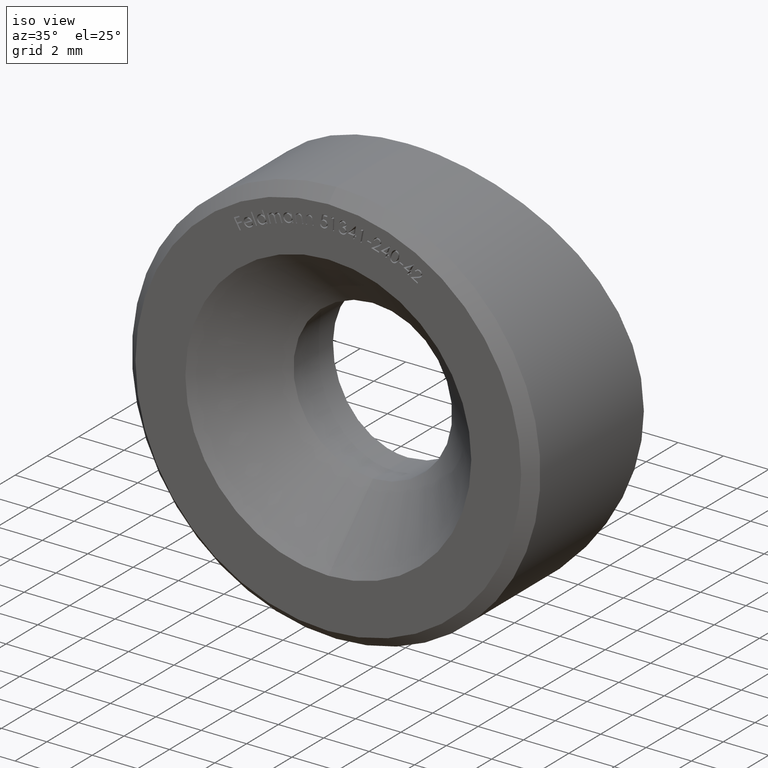
[diagram: clean part render]
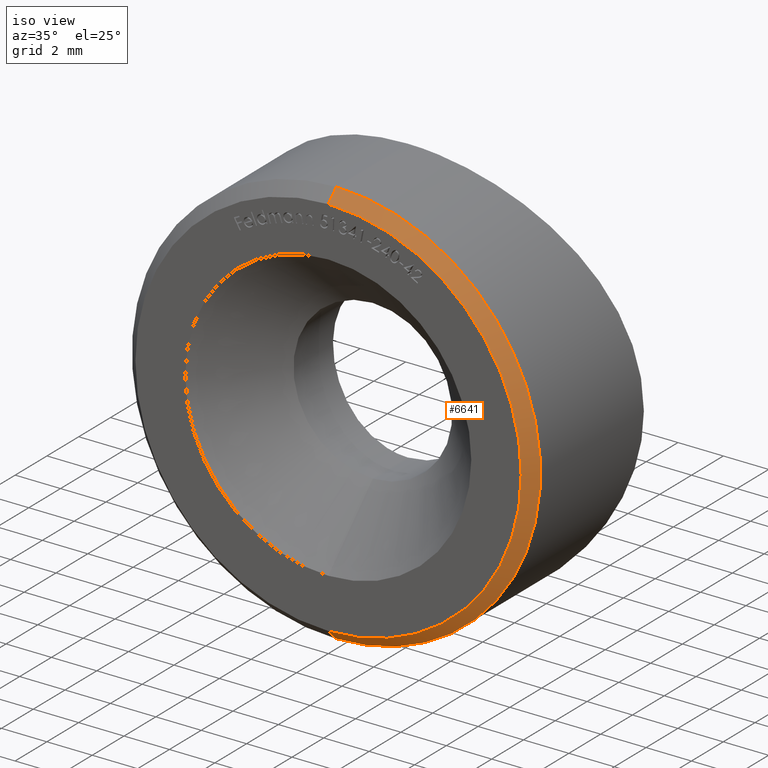
[diagram: same view with one face highlighted and labeled with its STEP entity id]
A machine part, iso view. The second image highlights one B-rep face of the part: STEP entity #6641.
In plain terms, the highlighted conical surface has half-angle 45 deg.
Its self-contained STEP definition (entity closure, byte-faithful):
#602 = VECTOR ( 'NONE', #6966, 1000.000000000000114 ) ;
#625 = EDGE_LOOP ( 'NONE', ( #7452, #5682, #12645, #7019 ) ) ;
#1182 = EDGE_CURVE ( 'NONE', #8345, #6302, #11291, .T. ) ;
#1341 = VERTEX_POINT ( 'NONE', #6113 ) ;
#1631 = DIRECTION ( 'NONE',  ( 0.000000000000000000, 0.7071067811865474617, 0.7071067811865474617 ) ) ;
#1910 = CARTESIAN_POINT ( 'NONE',  ( 1.102182119232617714E-15, 0.5000000000000056621, 9.000000000000000000 ) ) ;
#2977 = AXIS2_PLACEMENT_3D ( 'NONE', #4828, #9873, #3637 ) ;
#3034 = CIRCLE ( 'NONE', #6975, 9.000000000000000000 ) ;
#3055 = AXIS2_PLACEMENT_3D ( 'NONE', #4978, #7005, #9065 ) ;
#3301 = DIRECTION ( 'NONE',  ( 0.000000000000000000, 0.000000000000000000, 1.000000000000000000 ) ) ;
#3345 = CARTESIAN_POINT ( 'NONE',  ( 0.000000000000000000, 0.5000000000000056621, 0.000000000000000000 ) ) ;
#3637 = DIRECTION ( 'NONE',  ( 0.000000000000000000, 0.000000000000000000, 1.000000000000000000 ) ) ;
#4218 = DIRECTION ( 'NONE',  ( -0.000000000000000000, 1.000000000000000000, -0.000000000000000000 ) ) ;
#4512 = EDGE_CURVE ( 'NONE', #8345, #1341, #13158, .T. ) ;
#4828 = CARTESIAN_POINT ( 'NONE',  ( 0.000000000000000000, 0.5000000000000056621, 0.000000000000000000 ) ) ;
#4978 = CARTESIAN_POINT ( 'NONE',  ( 0.000000000000000000, 0.000000000000000000, 0.000000000000000000 ) ) ;
#5682 = ORIENTED_EDGE ( 'NONE', *, *, #1182, .T. ) ;
#6113 = CARTESIAN_POINT ( 'NONE',  ( 0.000000000000000000, 0.000000000000000000, 8.499999999999992895 ) ) ;
#6302 = VERTEX_POINT ( 'NONE', #11376 ) ;
#6641 = ADVANCED_FACE ( 'NONE', ( #11793 ), #10075, .T. ) ;
#6661 = LINE ( 'NONE', #11958, #8265 ) ;
#6966 = DIRECTION ( 'NONE',  ( 8.659560562354932858E-17, 0.7071067811865474617, -0.7071067811865474617 ) ) ;
#6975 = AXIS2_PLACEMENT_3D ( 'NONE', #3345, #4218, #3301 ) ;
#7005 = DIRECTION ( 'NONE',  ( -0.000000000000000000, -1.000000000000000000, -0.000000000000000000 ) ) ;
#7019 = ORIENTED_EDGE ( 'NONE', *, *, #9005, .F. ) ;
#7103 = CARTESIAN_POINT ( 'NONE',  ( 1.102182119232617714E-15, 0.5000000000000056621, -9.000000000000000000 ) ) ;
#7211 = VERTEX_POINT ( 'NONE', #1910 ) ;
#7452 = ORIENTED_EDGE ( 'NONE', *, *, #4512, .F. ) ;
#8265 = VECTOR ( 'NONE', #1631, 1000.000000000000114 ) ;
#8345 = VERTEX_POINT ( 'NONE', #12124 ) ;
#8348 = EDGE_CURVE ( 'NONE', #7211, #6302, #3034, .T. ) ;
#9005 = EDGE_CURVE ( 'NONE', #1341, #7211, #6661, .T. ) ;
#9065 = DIRECTION ( 'NONE',  ( 0.000000000000000000, 0.000000000000000000, 1.000000000000000000 ) ) ;
#9873 = DIRECTION ( 'NONE',  ( -0.000000000000000000, 1.000000000000000000, -0.000000000000000000 ) ) ;
#10075 = CONICAL_SURFACE ( 'NONE', #2977, 9.000000000000000000, 0.7853981633974482790 ) ;
#11291 = LINE ( 'NONE', #7103, #602 ) ;
#11376 = CARTESIAN_POINT ( 'NONE',  ( 0.000000000000000000, 0.5000000000000056621, -9.000000000000000000 ) ) ;
#11793 = FACE_OUTER_BOUND ( 'NONE', #625, .T. ) ;
#11958 = CARTESIAN_POINT ( 'NONE',  ( 0.000000000000000000, 0.5000000000000056621, 9.000000000000000000 ) ) ;
#12124 = CARTESIAN_POINT ( 'NONE',  ( 1.071565949253933532E-15, 0.000000000000000000, -8.499999999999992895 ) ) ;
#12645 = ORIENTED_EDGE ( 'NONE', *, *, #8348, .F. ) ;
#13158 = CIRCLE ( 'NONE', #3055, 8.499999999999992895 ) ;